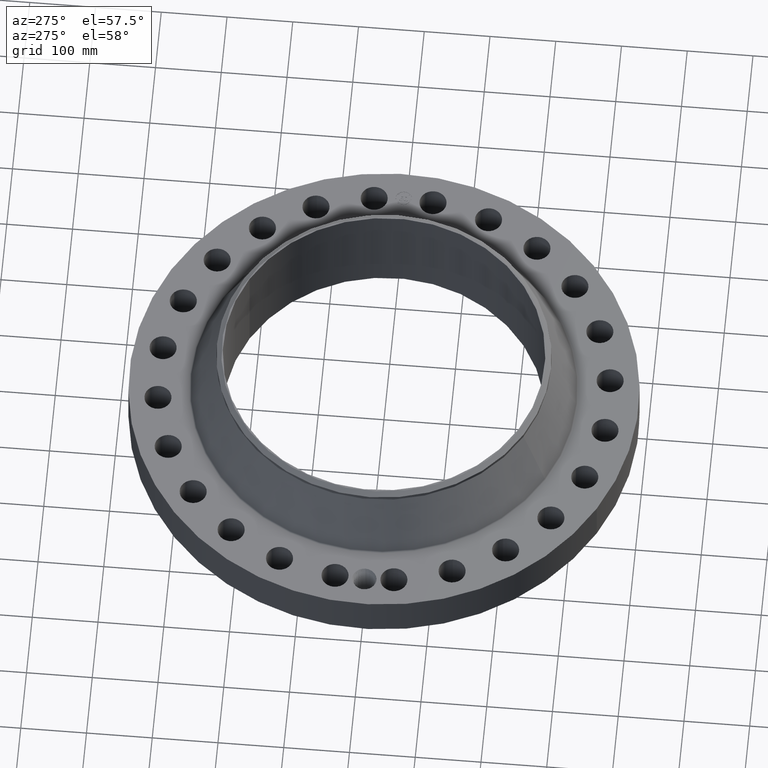
[diagram: clean part render]
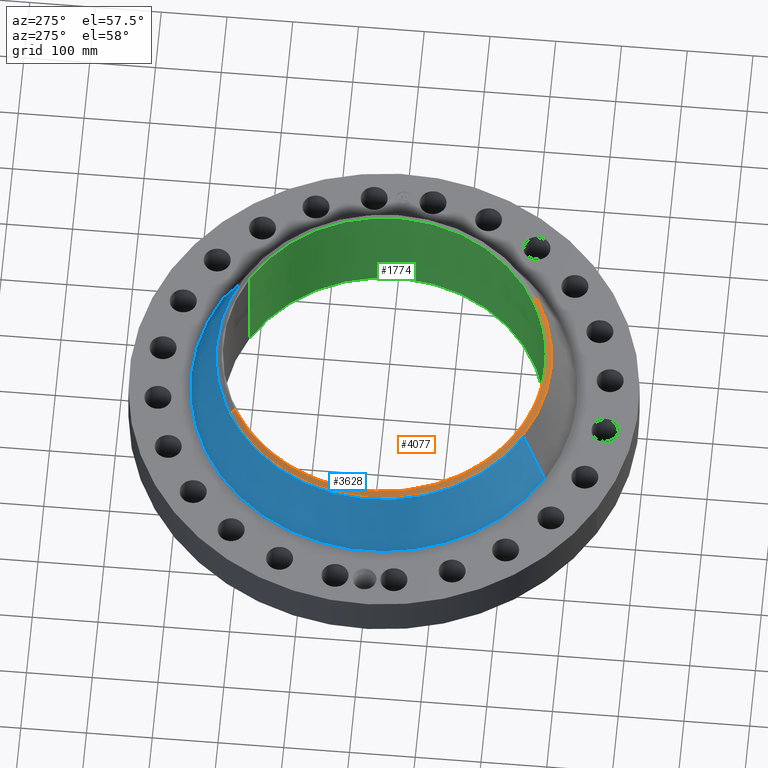
[diagram: same view with three faces highlighted in distinct colors, each labeled with its STEP entity id]
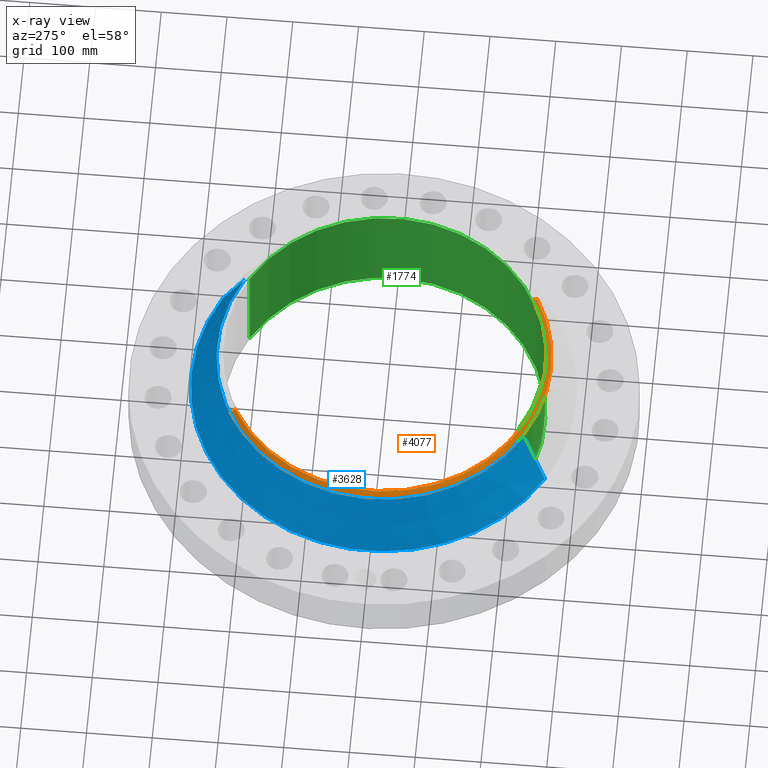
[diagram: x-ray of the same camera — body ghosted, the three highlighted faces saturated]
A machine part, auxiliary view with three faces highlighted in distinct colors.
The next image is the same camera in x-ray (body ghosted, the three faces saturated) — at least one of them is partly hidden behind the body in this view.
Their STEP definitions:

[orange] entity #4077 — the highlighted conical surface has half-angle 52.5 deg.
#3225=AXIS2_PLACEMENT_3D('Circle Axis2P3D',#3223,#3224,$) ;
#4042=AXIS2_PLACEMENT_3D('Cone Axis2P3D',#4039,#4040,#4041) ;
#4060=AXIS2_PLACEMENT_3D('Circle Axis2P3D',#4058,#4059,$) ;
#4067=AXIS2_PLACEMENT_3D('Circle Axis2P3D',#4065,#4066,$) ;
#3218=CARTESIAN_POINT('Vertex',(4.65222085149,-8.51583314735,6.87000000003)) ;
#3220=CARTESIAN_POINT('Vertex',(-4.65222085149,8.51583314735,6.87000000003)) ;
#3223=CARTESIAN_POINT('Axis2P3D Location',(0.,0.,6.87000000003)) ;
#4039=CARTESIAN_POINT('Axis2P3D Location',(0.,0.,6.87000000003)) ;
#4044=CARTESIAN_POINT('Line Origine',(4.72323811878,-8.64582938315,6.75633591372)) ;
#4048=CARTESIAN_POINT('Vertex',(4.79425538606,-8.77582561894,6.64267182741)) ;
#4051=CARTESIAN_POINT('Line Origine',(-4.72323811878,8.64582938315,6.75633591372)) ;
#4055=CARTESIAN_POINT('Vertex',(-4.79425538606,8.77582561894,6.64267182741)) ;
#4058=CARTESIAN_POINT('Axis2P3D Location',(0.,0.,6.64267182741)) ;
#4062=CARTESIAN_POINT('Vertex',(-4.79425538606,-8.77582561894,6.64267182741)) ;
#4065=CARTESIAN_POINT('Axis2P3D Location',(0.,0.,6.64267182741)) ;
#3224=DIRECTION('Axis2P3D Direction',(0.,0.,-0.0393700787402)) ;
#4040=DIRECTION('Axis2P3D Direction',(-0.,-0.,-0.0393700787402)) ;
#4041=DIRECTION('Axis2P3D XDirection',(-0.0188750212049,0.0345504945626,0.)) ;
#4045=DIRECTION('Vector Direction',(0.014974561121,-0.02741075027,-0.023966985394)) ;
#4052=DIRECTION('Vector Direction',(-0.014974561121,0.02741075027,-0.023966985394)) ;
#4059=DIRECTION('Axis2P3D Direction',(0.,0.,-0.0393700787402)) ;
#4066=DIRECTION('Axis2P3D Direction',(0.,0.,-0.0393700787402)) ;
#4046=VECTOR('Line Direction',#4045,0.0393700787402) ;
#4053=VECTOR('Line Direction',#4052,0.0393700787402) ;
#4071=ORIENTED_EDGE('',*,*,#4050,.F.) ;
#4072=ORIENTED_EDGE('',*,*,#3227,.F.) ;
#4073=ORIENTED_EDGE('',*,*,#4057,.T.) ;
#4074=ORIENTED_EDGE('',*,*,#4064,.T.) ;
#4075=ORIENTED_EDGE('',*,*,#4069,.F.) ;
#4077=ADVANCED_FACE('PartBody',(#4076),#4043,.T.) ;
#3226=CIRCLE('generated circle',#3225,9.70374015752) ;
#4061=CIRCLE('generated circle',#4060,10.) ;
#4068=CIRCLE('generated circle',#4067,10.) ;
#4043=CONICAL_SURFACE('Cone',#4042,9.70374015752,0.916297857297) ;
#3227=EDGE_CURVE('',#3221,#3219,#3226,.F.) ;
#4050=EDGE_CURVE('',#3219,#4049,#4047,.T.) ;
#4057=EDGE_CURVE('',#3221,#4056,#4054,.T.) ;
#4064=EDGE_CURVE('',#4056,#4063,#4061,.F.) ;
#4069=EDGE_CURVE('',#4049,#4063,#4068,.T.) ;
#4070=EDGE_LOOP('',(#4071,#4072,#4073,#4074,#4075)) ;
#4076=FACE_OUTER_BOUND('',#4070,.T.) ;
#4047=LINE('Line',#4044,#4046) ;
#4054=LINE('Line',#4051,#4053) ;
#3219=VERTEX_POINT('',#3218) ;
#3221=VERTEX_POINT('',#3220) ;
#4049=VERTEX_POINT('',#4048) ;
#4056=VERTEX_POINT('',#4055) ;
#4063=VERTEX_POINT('',#4062) ;

[blue] entity #3628 — the highlighted conical surface has half-angle 24.606 deg.
#2901=AXIS2_PLACEMENT_3D('Circle Axis2P3D',#2899,#2900,$) ;
#3589=AXIS2_PLACEMENT_3D('Cone Axis2P3D',#3586,#3587,#3588) ;
#3619=AXIS2_PLACEMENT_3D('Circle Axis2P3D',#3617,#3618,$) ;
#2877=CARTESIAN_POINT('Vertex',(5.52678255456,10.1167076067,3.07003558671)) ;
#2884=CARTESIAN_POINT('Vertex',(-5.52678255456,-10.1167076067,3.07003558671)) ;
#2899=CARTESIAN_POINT('Axis2P3D Location',(0.,0.,3.07003558671)) ;
#3586=CARTESIAN_POINT('Axis2P3D Location',(0.,0.,6.40645135497)) ;
#3591=CARTESIAN_POINT('Line Origine',(5.16051897031,9.44626661282,4.73824347084)) ;
#3595=CARTESIAN_POINT('Vertex',(4.79425538606,8.77582561894,6.40645135497)) ;
#3602=CARTESIAN_POINT('Vertex',(-4.79425538606,-8.77582561894,6.40645135497)) ;
#3605=CARTESIAN_POINT('Line Origine',(-5.16051897031,-9.44626661282,4.73824347084)) ;
#3617=CARTESIAN_POINT('Axis2P3D Location',(0.,0.,6.40645135497)) ;
#2900=DIRECTION('Axis2P3D Direction',(0.,0.,-0.0393700787402)) ;
#3587=DIRECTION('Axis2P3D Direction',(0.,0.,-0.0393700787402)) ;
#3588=DIRECTION('Axis2P3D XDirection',(-0.0188750212049,-0.0345504945626,0.)) ;
#3592=DIRECTION('Vector Direction',(0.0078589946719,0.0143857932519,-0.0357950870269)) ;
#3606=DIRECTION('Vector Direction',(-0.0078589946719,-0.0143857932519,-0.0357950870269)) ;
#3618=DIRECTION('Axis2P3D Direction',(0.,0.,-0.0393700787402)) ;
#3593=VECTOR('Line Direction',#3592,0.0393700787402) ;
#3607=VECTOR('Line Direction',#3606,0.0393700787402) ;
#3623=ORIENTED_EDGE('',*,*,#2903,.F.) ;
#3624=ORIENTED_EDGE('',*,*,#3609,.T.) ;
#3625=ORIENTED_EDGE('',*,*,#3621,.T.) ;
#3626=ORIENTED_EDGE('',*,*,#3597,.F.) ;
#3628=ADVANCED_FACE('PartBody',(#3627),#3590,.T.) ;
#2902=CIRCLE('generated circle',#2901,11.5279268823) ;
#3620=CIRCLE('generated circle',#3619,10.) ;
#3590=CONICAL_SURFACE('Cone',#3589,10.,0.429449232989) ;
#2903=EDGE_CURVE('',#2885,#2878,#2902,.T.) ;
#3597=EDGE_CURVE('',#2878,#3596,#3594,.F.) ;
#3609=EDGE_CURVE('',#2885,#3603,#3608,.F.) ;
#3621=EDGE_CURVE('',#3603,#3596,#3620,.T.) ;
#3622=EDGE_LOOP('',(#3623,#3624,#3625,#3626)) ;
#3627=FACE_OUTER_BOUND('',#3622,.T.) ;
#3594=LINE('Line',#3591,#3593) ;
#3608=LINE('Line',#3605,#3607) ;
#2878=VERTEX_POINT('',#2877) ;
#2885=VERTEX_POINT('',#2884) ;
#3596=VERTEX_POINT('',#3595) ;
#3603=VERTEX_POINT('',#3602) ;

[green] entity #1774 — the highlighted cylindrical surface (partial cylindrical patch) has radius 244.475 mm, axis along (0, 0, -1).
#253=AXIS2_PLACEMENT_3D('Circle Axis2P3D',#251,#252,$) ;
#1705=AXIS2_PLACEMENT_3D('Cylinder Axis2P3D',#1702,#1703,#1704) ;
#1709=AXIS2_PLACEMENT_3D('Circle Axis2P3D',#1707,#1708,$) ;
#251=CARTESIAN_POINT('Axis2P3D Location',(0.,0.,0.250000000001)) ;
#255=CARTESIAN_POINT('Vertex',(4.61447080908,8.44673215823,0.250000000001)) ;
#257=CARTESIAN_POINT('Vertex',(-4.61447080908,-8.44673215823,0.250000000001)) ;
#1702=CARTESIAN_POINT('Axis2P3D Location',(0.,0.,3.56000000001)) ;
#1707=CARTESIAN_POINT('Axis2P3D Location',(0.,0.,6.87000000003)) ;
#1711=CARTESIAN_POINT('Vertex',(4.61447080908,8.44673215823,6.87000000003)) ;
#1713=CARTESIAN_POINT('Vertex',(-4.61447080908,-8.44673215823,6.87000000003)) ;
#1716=CARTESIAN_POINT('Line Origine',(4.61447080908,8.44673215823,3.56000000001)) ;
#1721=CARTESIAN_POINT('Line Origine',(-4.61447080908,-8.44673215823,3.56000000001)) ;
#1733=CARTESIAN_POINT('Control Point',(0.219395640473,-9.62249918439,0.820143615352)) ;
#1734=CARTESIAN_POINT('Control Point',(0.19444291689,-9.62306811339,0.77446796121)) ;
#1735=CARTESIAN_POINT('Control Point',(0.157604791906,-9.62382710762,0.735287784811)) ;
#1736=CARTESIAN_POINT('Control Point',(0.111106772791,-9.62456527477,0.706756392356)) ;
#1737=CARTESIAN_POINT('Control Point',(0.0336714944259,-9.62515257644,0.6841171461)) ;
#1738=CARTESIAN_POINT('Control Point',(-0.0446733582004,-9.6249496081,0.691943940254)) ;
#1739=CARTESIAN_POINT('Control Point',(-0.0703037610878,-9.62479204385,0.697956966162)) ;
#1740=CARTESIAN_POINT('Control Point',(-0.143960694977,-9.62409577409,0.725790478116)) ;
#1741=CARTESIAN_POINT('Control Point',(-0.203248804309,-9.62295930718,0.780507803163)) ;
#1742=CARTESIAN_POINT('Control Point',(-0.23221312573,-9.62221396751,0.826748903237)) ;
#1743=CARTESIAN_POINT('Control Point',(-0.255841100082,-9.62160132498,0.904894882153)) ;
#1744=CARTESIAN_POINT('Control Point',(-0.24828173432,-9.62179716896,0.984257576214)) ;
#1745=CARTESIAN_POINT('Control Point',(-0.242047982617,-9.62196101179,1.01081839008)) ;
#1746=CARTESIAN_POINT('Control Point',(-0.232314831577,-9.62220462327,1.03620796397)) ;
#1747=CARTESIAN_POINT('Control Point',(-0.219395640473,-9.62249918439,1.05985638466)) ;
#1748=CARTESIAN_POINT('Vertex',(0.219395640473,-9.62249918439,0.820143615352)) ;
#1750=CARTESIAN_POINT('Vertex',(-0.219395640473,-9.62249918439,1.05985638466)) ;
#1754=CARTESIAN_POINT('Control Point',(-0.219395640473,-9.62249918439,1.05985638466)) ;
#1755=CARTESIAN_POINT('Control Point',(-0.194442916871,-9.62306811339,1.10553203883)) ;
#1756=CARTESIAN_POINT('Control Point',(-0.157604791848,-9.62382710762,1.14471221526)) ;
#1757=CARTESIAN_POINT('Control Point',(-0.111106772871,-9.62456527477,1.17324360763)) ;
#1758=CARTESIAN_POINT('Control Point',(-0.0336714944645,-9.62515257644,1.19588285391)) ;
#1759=CARTESIAN_POINT('Control Point',(0.0446733582048,-9.6249496081,1.18805605975)) ;
#1760=CARTESIAN_POINT('Control Point',(0.0703037610847,-9.62479204385,1.18204303385)) ;
#1761=CARTESIAN_POINT('Control Point',(0.143960694986,-9.62409577409,1.15420952189)) ;
#1762=CARTESIAN_POINT('Control Point',(0.203248804325,-9.62295930718,1.09949219683)) ;
#1763=CARTESIAN_POINT('Control Point',(0.232213125726,-9.62221396751,1.05325109679)) ;
#1764=CARTESIAN_POINT('Control Point',(0.255841100082,-9.62160132498,0.975105117863)) ;
#1765=CARTESIAN_POINT('Control Point',(0.24828173432,-9.62179716896,0.895742423791)) ;
#1766=CARTESIAN_POINT('Control Point',(0.242047982617,-9.62196101179,0.869181609934)) ;
#1767=CARTESIAN_POINT('Control Point',(0.232314831577,-9.62220462327,0.843792036042)) ;
#1768=CARTESIAN_POINT('Control Point',(0.219395640473,-9.62249918439,0.820143615352)) ;
#252=DIRECTION('Axis2P3D Direction',(0.,0.,-0.0393700787402)) ;
#1703=DIRECTION('Axis2P3D Direction',(0.,0.,-0.0393700787402)) ;
#1704=DIRECTION('Axis2P3D XDirection',(-0.0188750212049,-0.0345504945626,0.)) ;
#1708=DIRECTION('Axis2P3D Direction',(0.,0.,-0.0393700787402)) ;
#1717=DIRECTION('Vector Direction',(0.,0.,-0.0393700787402)) ;
#1722=DIRECTION('Vector Direction',(0.,0.,-0.0393700787402)) ;
#1718=VECTOR('Line Direction',#1717,0.0393700787402) ;
#1723=VECTOR('Line Direction',#1722,0.0393700787402) ;
#1727=ORIENTED_EDGE('',*,*,#1715,.F.) ;
#1728=ORIENTED_EDGE('',*,*,#1720,.T.) ;
#1729=ORIENTED_EDGE('',*,*,#259,.T.) ;
#1730=ORIENTED_EDGE('',*,*,#1725,.F.) ;
#1771=ORIENTED_EDGE('',*,*,#1752,.F.) ;
#1772=ORIENTED_EDGE('',*,*,#1769,.F.) ;
#1773=FACE_BOUND('',#1770,.T.) ;
#1774=ADVANCED_FACE('PartBody',(#1731,#1773),#1706,.F.) ;
#1732=B_SPLINE_CURVE_WITH_KNOTS('',5,(#1733,#1734,#1735,#1736,#1737,#1738,#1739,#1740,#1741,#1742,#1743,#1744,#1745,#1746,#1747),.UNSPECIFIED.,.F.,.U.,(6,3,3,3,6),(0.,9.34848971296,14.0229242088,23.3729649346,28.2131149376),.UNSPECIFIED.) ;
#1753=B_SPLINE_CURVE_WITH_KNOTS('',5,(#1754,#1755,#1756,#1757,#1758,#1759,#1760,#1761,#1762,#1763,#1764,#1765,#1766,#1767,#1768),.UNSPECIFIED.,.F.,.U.,(6,3,3,3,6),(0.,9.3484897203,14.0229242165,23.3729649442,28.2131149474),.UNSPECIFIED.) ;
#254=CIRCLE('generated circle',#253,9.62500000004) ;
#1710=CIRCLE('generated circle',#1709,9.62500000004) ;
#1706=CYLINDRICAL_SURFACE('generated cylinder',#1705,9.62500000004) ;
#259=EDGE_CURVE('',#256,#258,#254,.T.) ;
#1715=EDGE_CURVE('',#1712,#1714,#1710,.T.) ;
#1720=EDGE_CURVE('',#1712,#256,#1719,.T.) ;
#1725=EDGE_CURVE('',#1714,#258,#1724,.T.) ;
#1752=EDGE_CURVE('',#1749,#1751,#1732,.T.) ;
#1769=EDGE_CURVE('',#1751,#1749,#1753,.T.) ;
#1726=EDGE_LOOP('',(#1727,#1728,#1729,#1730)) ;
#1770=EDGE_LOOP('',(#1771,#1772)) ;
#1731=FACE_OUTER_BOUND('',#1726,.T.) ;
#1719=LINE('Line',#1716,#1718) ;
#1724=LINE('Line',#1721,#1723) ;
#256=VERTEX_POINT('',#255) ;
#258=VERTEX_POINT('',#257) ;
#1712=VERTEX_POINT('',#1711) ;
#1714=VERTEX_POINT('',#1713) ;
#1749=VERTEX_POINT('',#1748) ;
#1751=VERTEX_POINT('',#1750) ;